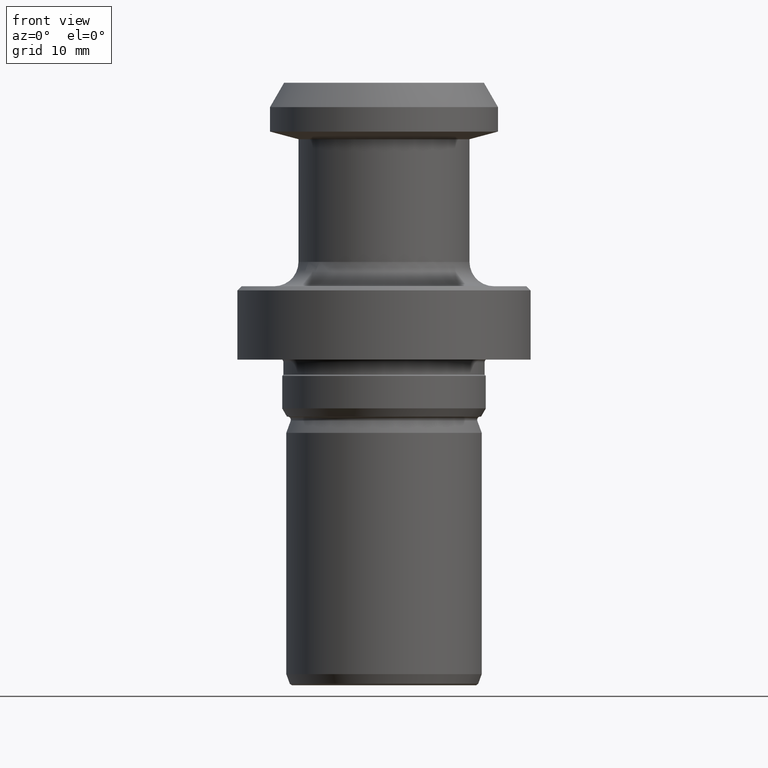
[diagram: clean part render]
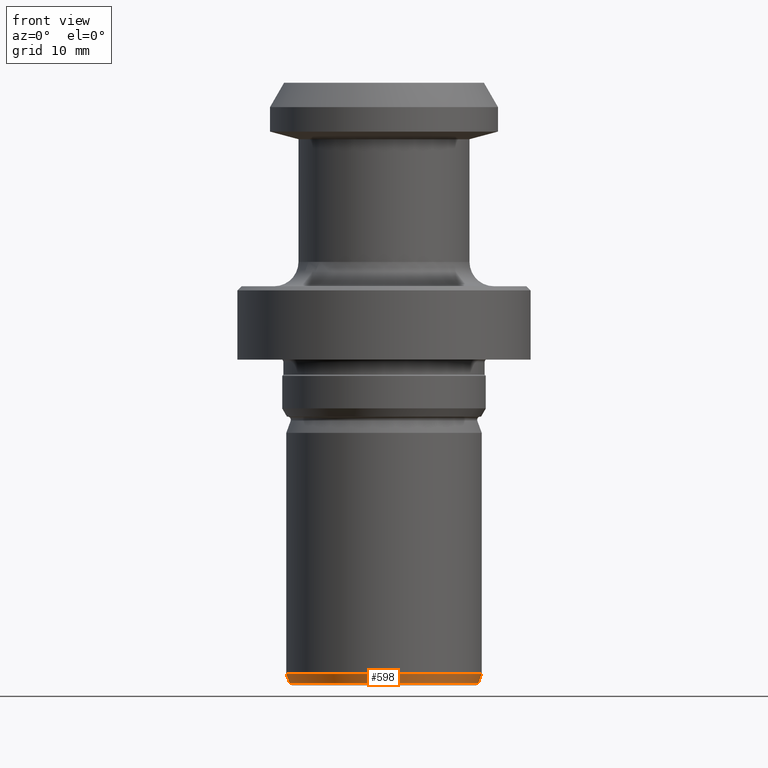
[diagram: same view with one face highlighted and labeled with its STEP entity id]
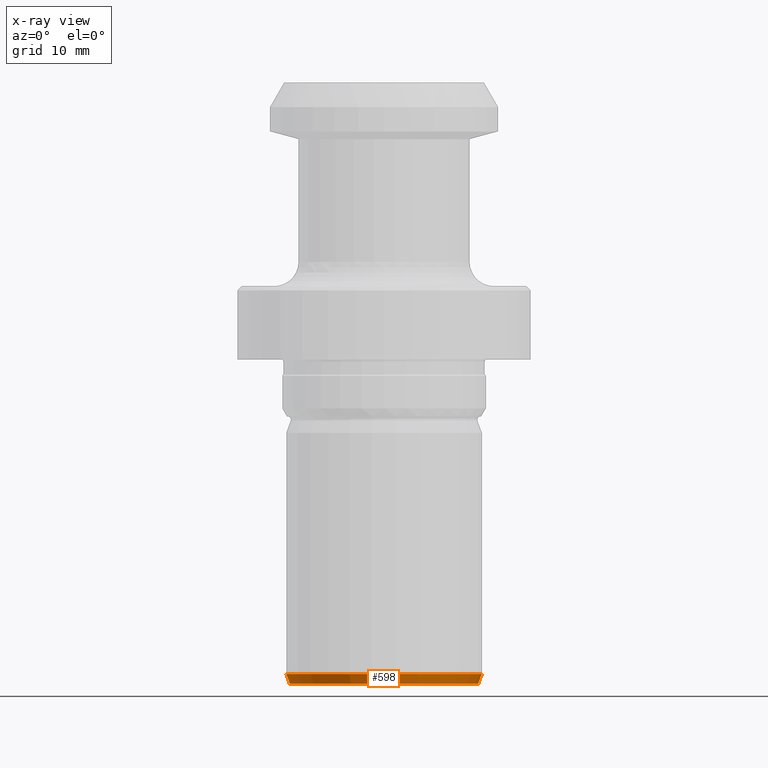
[diagram: x-ray of the same camera — body ghosted, the highlighted face saturated]
A machine part, front view. The second image highlights one B-rep face of the part: STEP entity #598.
The next image is the same camera in x-ray: the body ghosted, the highlighted face saturated — about 0% of this face is hidden behind the body in this view.
In plain terms, the highlighted conical surface has half-angle 20 deg.
Its self-contained STEP definition (entity closure, byte-faithful):
#57 = CIRCLE ( 'NONE', #325, 11.56840402866513400 ) ;
#60 = VERTEX_POINT ( 'NONE', #98 ) ;
#98 = CARTESIAN_POINT ( 'NONE',  ( -11.56840402866513400, 1.416720896494810100E-015, -73.81206147584282500 ) ) ;
#119 = AXIS2_PLACEMENT_3D ( 'NONE', #571, #1016, #661 ) ;
#183 = CARTESIAN_POINT ( 'NONE',  ( -11.56840402866513400, 1.416720896494810100E-015, -73.81206147584282500 ) ) ;
#224 = AXIS2_PLACEMENT_3D ( 'NONE', #1146, #419, #938 ) ;
#232 = ORIENTED_EDGE ( 'NONE', *, *, #785, .T. ) ;
#252 = EDGE_CURVE ( 'NONE', #60, #1002, #1061, .T. ) ;
#270 = DIRECTION ( 'NONE',  ( -0.0000000000000000000, -0.0000000000000000000, 1.000000000000000000 ) ) ;
#325 = AXIS2_PLACEMENT_3D ( 'NONE', #799, #270, #893 ) ;
#380 = VERTEX_POINT ( 'NONE', #749 ) ;
#419 = DIRECTION ( 'NONE',  ( -0.0000000000000000000, -0.0000000000000000000, 1.000000000000000000 ) ) ;
#448 = EDGE_LOOP ( 'NONE', ( #927, #1118, #232, #973 ) ) ;
#571 = CARTESIAN_POINT ( 'NONE',  ( 0.0000000000000000000, 0.0000000000000000000, -72.62626129027269400 ) ) ;
#598 = ADVANCED_FACE ( 'NONE', ( #980 ), #1115, .T. ) ;
#607 = VECTOR ( 'NONE', #1076, 1000.000000000000000 ) ;
#623 = VERTEX_POINT ( 'NONE', #922 ) ;
#661 = DIRECTION ( 'NONE',  ( 1.000000000000000000, 0.0000000000000000000, 0.0000000000000000000 ) ) ;
#726 = DIRECTION ( 'NONE',  ( -0.3420201433256689900, 4.188538737676994800E-017, 0.9396926207859083200 ) ) ;
#749 = CARTESIAN_POINT ( 'NONE',  ( 12.00000000000000000, 0.0000000000000000000, -72.62626129027269400 ) ) ;
#758 = CIRCLE ( 'NONE', #119, 12.00000000000000000 ) ;
#785 = EDGE_CURVE ( 'NONE', #623, #380, #1077, .T. ) ;
#799 = CARTESIAN_POINT ( 'NONE',  ( 0.0000000000000000000, 0.0000000000000000000, -73.81206147584282500 ) ) ;
#818 = VECTOR ( 'NONE', #726, 1000.000000000000000 ) ;
#821 = CARTESIAN_POINT ( 'NONE',  ( -12.00000000000000000, 1.469576158976823900E-015, -72.62626129027269400 ) ) ;
#893 = DIRECTION ( 'NONE',  ( 1.000000000000000000, 0.0000000000000000000, 0.0000000000000000000 ) ) ;
#922 = CARTESIAN_POINT ( 'NONE',  ( 11.56840402866513400, 0.0000000000000000000, -73.81206147584282500 ) ) ;
#927 = ORIENTED_EDGE ( 'NONE', *, *, #252, .F. ) ;
#938 = DIRECTION ( 'NONE',  ( 1.000000000000000000, 0.0000000000000000000, 0.0000000000000000000 ) ) ;
#973 = ORIENTED_EDGE ( 'NONE', *, *, #979, .F. ) ;
#979 = EDGE_CURVE ( 'NONE', #1002, #380, #758, .T. ) ;
#980 = FACE_OUTER_BOUND ( 'NONE', #448, .T. ) ;
#1002 = VERTEX_POINT ( 'NONE', #821 ) ;
#1016 = DIRECTION ( 'NONE',  ( -0.0000000000000000000, -0.0000000000000000000, 1.000000000000000000 ) ) ;
#1061 = LINE ( 'NONE', #183, #818 ) ;
#1072 = EDGE_CURVE ( 'NONE', #60, #623, #57, .T. ) ;
#1076 = DIRECTION ( 'NONE',  ( 0.3420201433256689900, 0.0000000000000000000, 0.9396926207859083200 ) ) ;
#1077 = LINE ( 'NONE', #1164, #607 ) ;
#1115 = CONICAL_SURFACE ( 'NONE', #224, 11.56840402866513400, 0.3490658503988661700 ) ;
#1118 = ORIENTED_EDGE ( 'NONE', *, *, #1072, .T. ) ;
#1146 = CARTESIAN_POINT ( 'NONE',  ( 0.0000000000000000000, 0.0000000000000000000, -73.81206147584282500 ) ) ;
#1164 = CARTESIAN_POINT ( 'NONE',  ( 11.56840402866513400, 0.0000000000000000000, -73.81206147584282500 ) ) ;